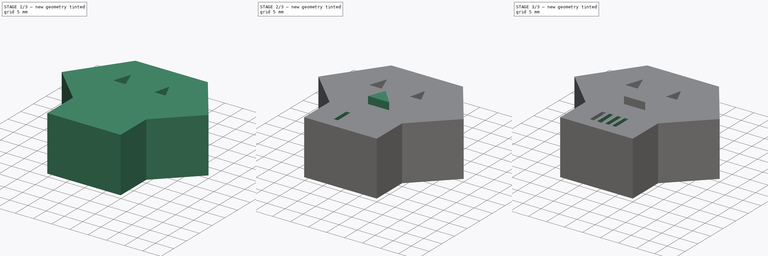
[diagram: build sequence overview — one tinted view per stage of 3, left to right]
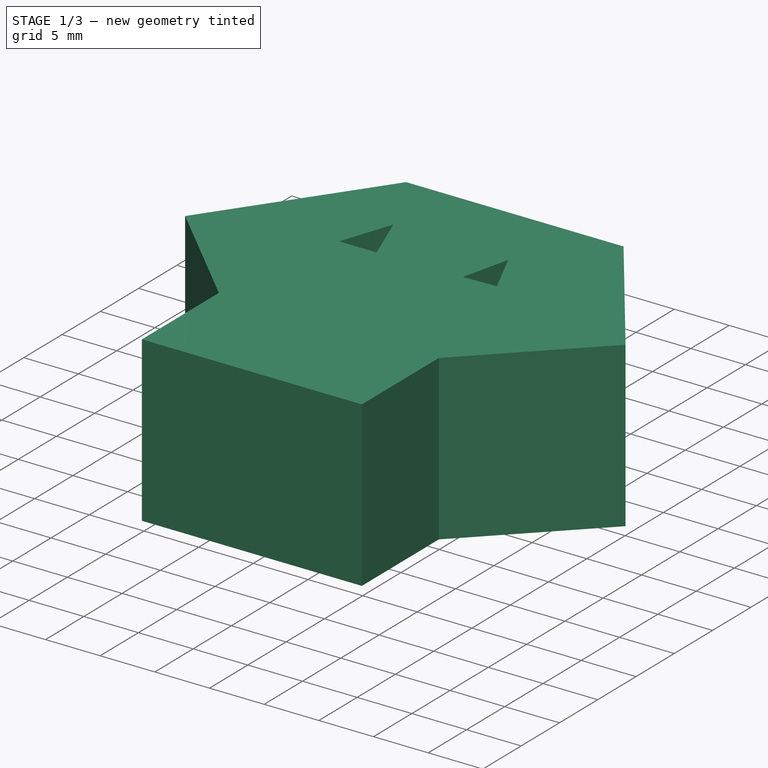
[diagram: stage 1 of 3 — iso view after this stage's code; geometry added in this stage tinted green]
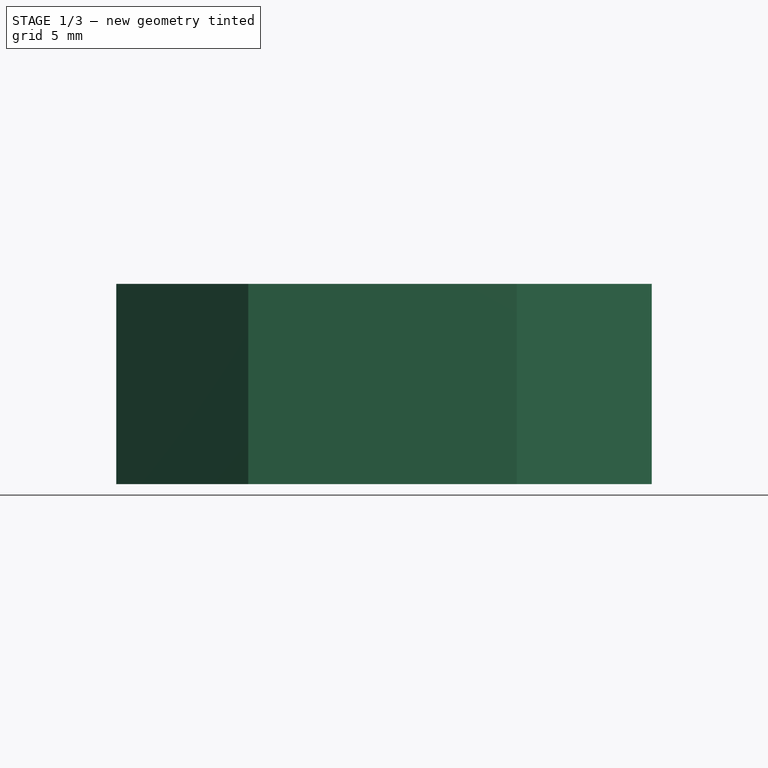
[diagram: stage 1 of 3 — front view after this stage's code; geometry added in this stage tinted green]
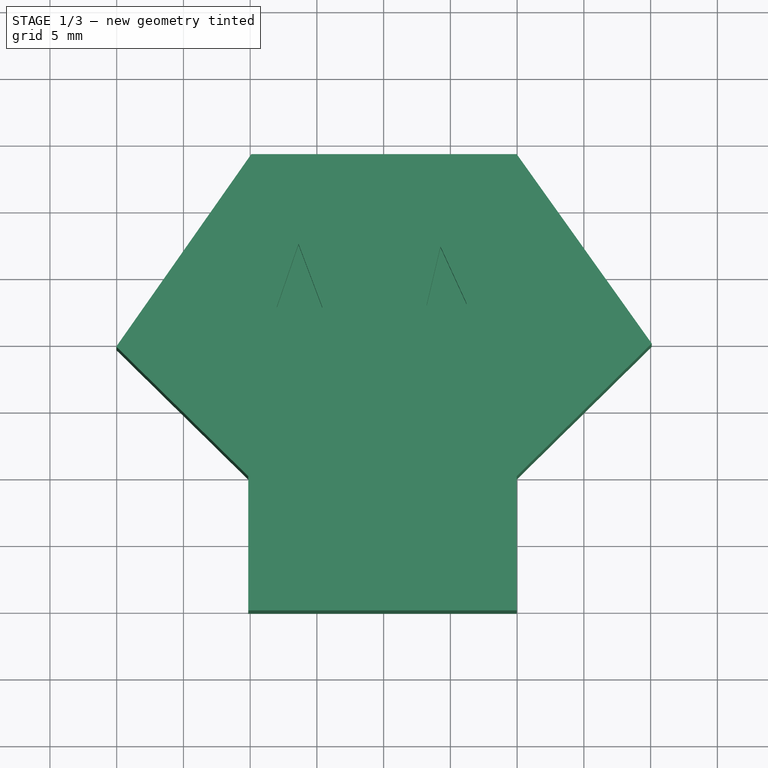
[diagram: stage 1 of 3 — top view after this stage's code; geometry added in this stage tinted green]
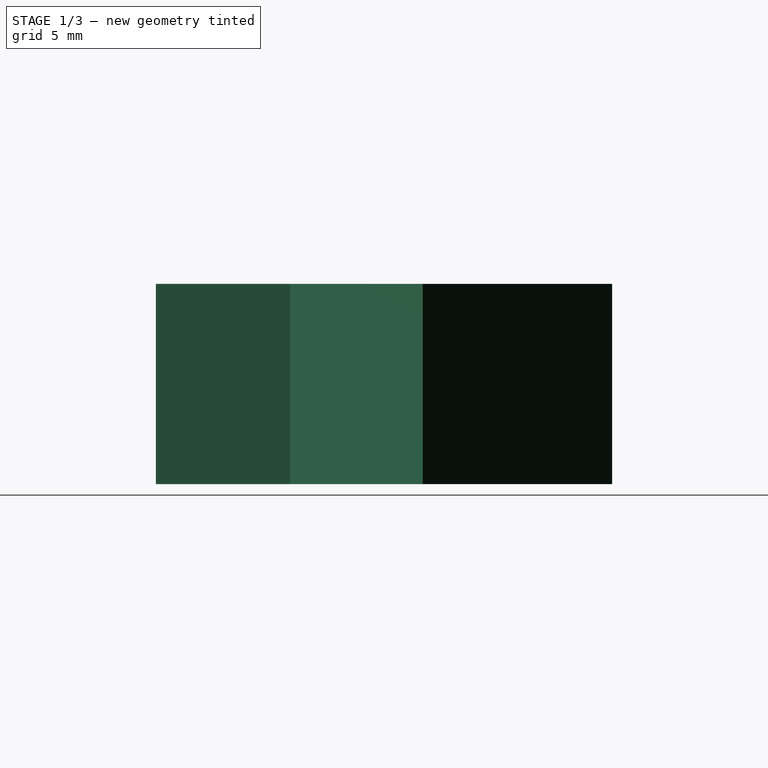
[diagram: stage 1 of 3 — right view after this stage's code; geometry added in this stage tinted green]
FCSTD DOCUMENT  (FreeCAD 0.21R33694 (Git))
Label: OJT1_T17R01_calavera
License: All rights reserved
LicenseURL: https://en.wikipedia.org/wiki/All_rights_reserved
objects: Sketcher::SketchObject×8, PartDesign::Pocket×6, PartDesign::Pad×2, PartDesign::Body×1
note: 25 computed .brp shape members not serialized (recipe doc carries the construction recipe); baked Part::Feature solids carry a one-line shape summary decoded from their .brp

FEATURE [Sketcher::SketchObject] Sketch
  FullyConstrained = false
  MapMode = 5
  Support = -> [XY_Plane]
  sketch-geometry (8):
    g0: LineSegment StartX=-10.1477 StartY=-10.0554 StartZ=0 EndX=9.96763 EndY=-10.0554 EndZ=0
    g1: LineSegment StartX=9.96763 StartY=-10.0554 StartZ=0 EndX=9.96763 EndY=0 EndZ=0
    g2: LineSegment StartX=9.96763 StartY=0 StartZ=0 EndX=20.0834 EndY=9.94371 EndZ=0
    g3: LineSegment StartX=20.0834 StartY=9.94371 StartZ=0 EndX=9.96763 EndY=24.1291 EndZ=0
    g4: LineSegment StartX=9.96763 StartY=24.1291 StartZ=0 EndX=-9.91517 EndY=24.1291 EndZ=0
    g5: LineSegment StartX=-9.91517 StartY=24.1291 StartZ=0 EndX=-20.031 EndY=9.71116 EndZ=0
    g6: LineSegment StartX=-20.031 StartY=9.71116 StartZ=0 EndX=-10.1477 EndY=0 EndZ=0
    g7: LineSegment StartX=-10.1477 StartY=0 StartZ=0 EndX=-10.1477 EndY=-10.0554 EndZ=0
  constraints (14):
    c: Horizontal(g0)
    c: Coincident(g0,g1)
    c: PointOnObject(g1,g-1)
    c: Vertical(g1)
    c: Coincident(g1,g2)
    c: Coincident(g2,g3)
    c: Coincident(g3,g4)
    c: Horizontal(g4)
    c: Coincident(g4,g5)
    c: Coincident(g5,g6)
    c: PointOnObject(g6,g-1)
    c: Coincident(g6,g7)
    c: Coincident(g7,g0)
    c: Vertical(g7)
FEATURE [PartDesign::Pad] Pad  label="cap_calavera"
  Direction = (0,0,1)
  Length = 15
  Length2 = 10
  Profile = -> Sketch
  ReferenceAxis = -> Sketch [N_Axis]
  Type = 0
FEATURE [Sketcher::SketchObject] Sketch001
  FullyConstrained = false
  MapMode = 5
  Placement = pos=(0,0,15) rot=(0,0,1;0rad)
  Support = -> [Pad]
  sketch-geometry (3):
    g0: LineSegment StartX=-8.01559 StartY=12.6535 StartZ=0 EndX=-6.37884 EndY=17.4079 EndZ=0
    g1: LineSegment StartX=-6.37884 StartY=17.4079 StartZ=0 EndX=-4.58621 EndY=12.6535 EndZ=0
    g2: LineSegment StartX=-4.58621 StartY=12.6535 StartZ=0 EndX=-8.01559 EndY=12.6535 EndZ=0
  constraints (4):
    c: Coincident(g0,g1)
    c: Coincident(g1,g2)
    c: Coincident(g2,g0)
    c: Horizontal(g2)
FEATURE [PartDesign::Pocket] Pocket
  BaseFeature = -> Pad
  Direction = (0,0,-1)
  Length = 4
  Length2 = 5
  Profile = -> Sketch001
  ReferenceAxis = -> Sketch001 [N_Axis]
  Type = 0
FEATURE [Sketcher::SketchObject] Sketch002
  FullyConstrained = false
  MapMode = 5
  Placement = pos=(0,0,15) rot=(0,0,1;0rad)
  Support = -> [Pocket]
  sketch-geometry (3):
    g0: LineSegment StartX=3.20978 StartY=12.7924 StartZ=0 EndX=4.25624 EndY=17.2108 EndZ=0
    g1: LineSegment StartX=4.25624 StartY=17.2108 StartZ=0 EndX=6.2329 EndY=12.9087 EndZ=0
    g2: LineSegment StartX=6.2329 StartY=12.9087 StartZ=0 EndX=3.20978 EndY=12.7924 EndZ=0
  constraints (3):
    c: Coincident(g0,g1)
    c: Coincident(g1,g2)
    c: Coincident(g2,g0)
FEATURE [PartDesign::Pocket] Pocket001
  BaseFeature = -> Pocket
  Direction = (0,0,-1)
  Length = 4
  Length2 = 5
  Profile = -> Sketch002
  ReferenceAxis = -> Sketch002 [N_Axis]
  Type = 0
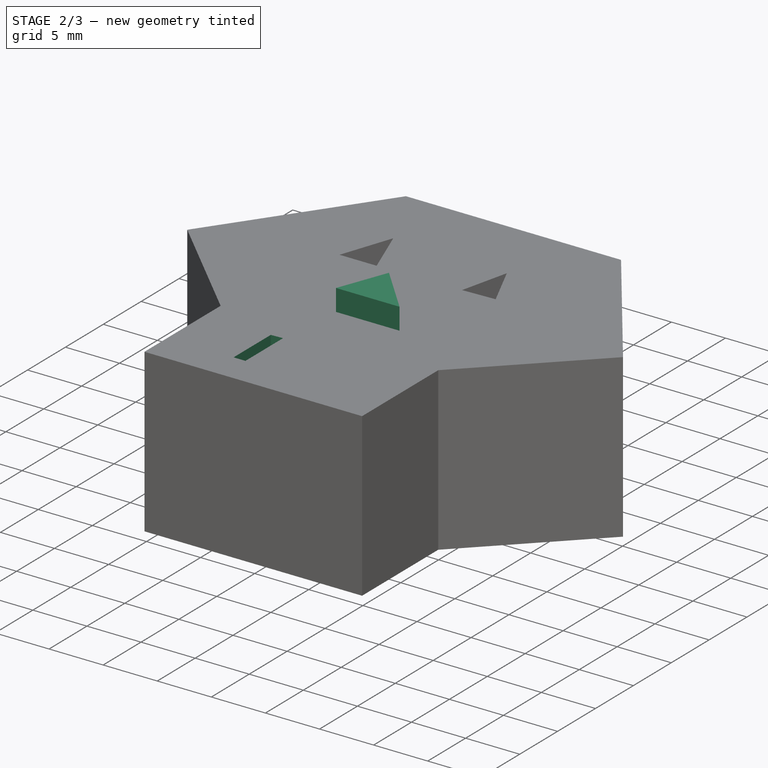
[diagram: stage 2 of 3 — iso view after this stage's code; geometry added in this stage tinted green]
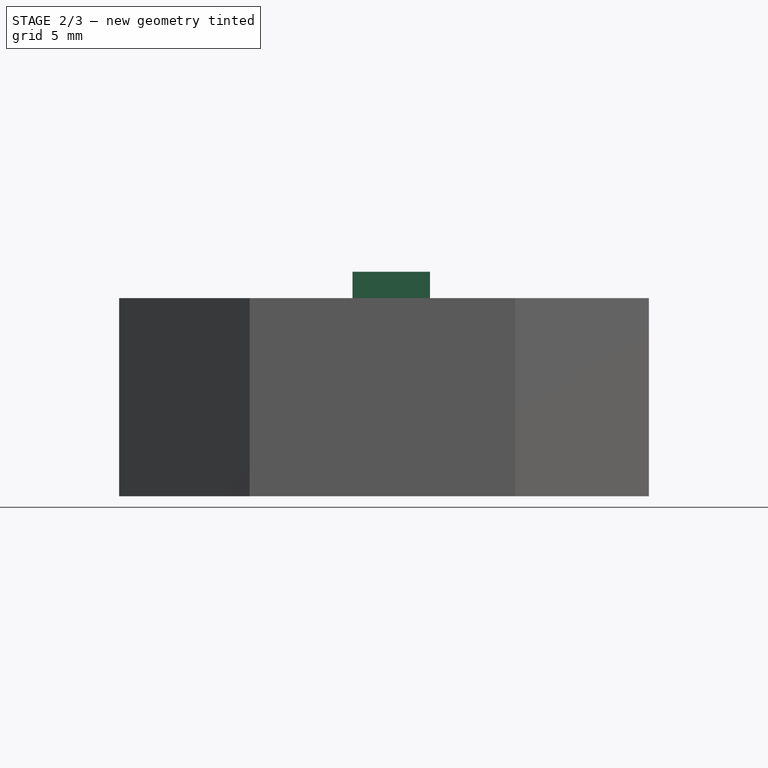
[diagram: stage 2 of 3 — front view after this stage's code; geometry added in this stage tinted green]
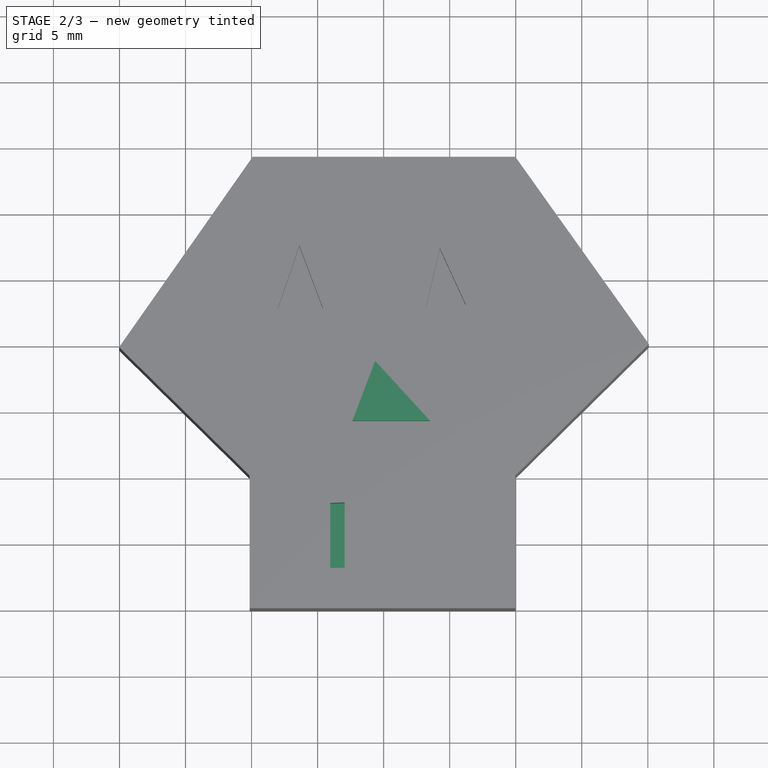
[diagram: stage 2 of 3 — top view after this stage's code; geometry added in this stage tinted green]
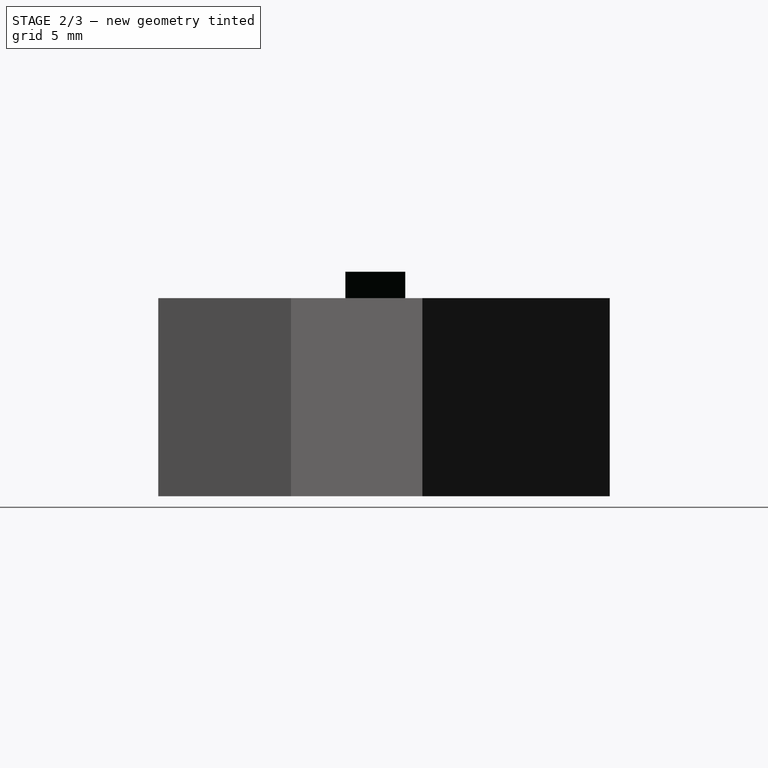
[diagram: stage 2 of 3 — right view after this stage's code; geometry added in this stage tinted green]
FEATURE [Sketcher::SketchObject] Sketch003
  FullyConstrained = false
  MapMode = 5
  Placement = pos=(0,0,15) rot=(0,0,1;0rad)
  Support = -> [Pocket001]
  sketch-geometry (3):
    g0: LineSegment StartX=-0.640232 StartY=8.64442 StartZ=0 EndX=-2.36316 EndY=4.11375 EndZ=0
    g1: LineSegment StartX=-2.36316 StartY=4.11375 StartZ=0 EndX=3.50757 EndY=4.11375 EndZ=0
    g2: LineSegment StartX=3.50757 StartY=4.11375 StartZ=0 EndX=-0.640232 EndY=8.64442 EndZ=0
  constraints (4):
    c: Coincident(g0,g1)
    c: Horizontal(g1)
    c: Coincident(g1,g2)
    c: Coincident(g2,g0)
FEATURE [PartDesign::Pad] Pad001
  BaseFeature = -> Pocket001
  Direction = (0,0,1)
  Length = 2
  Length2 = 10
  Profile = -> Sketch003
  ReferenceAxis = -> Sketch003 [N_Axis]
  Type = 0
FEATURE [Sketcher::SketchObject] Sketch004
  FullyConstrained = false
  MapMode = 5
  Placement = pos=(0,0,15) rot=(0,0,1;0rad)
  Support = -> [Pad001]
  sketch-geometry (4):
    g0: LineSegment StartX=-4.04793 StartY=-2.08913 StartZ=0 EndX=-4.04793 EndY=-7.00017 EndZ=0
    g1: LineSegment StartX=-4.04793 StartY=-7.00017 StartZ=0 EndX=-2.95079 EndY=-7.00017 EndZ=0
    g2: LineSegment StartX=-2.95079 StartY=-7.00017 StartZ=0 EndX=-2.95079 EndY=-2.03689 EndZ=0
    g3: LineSegment StartX=-2.95079 StartY=-2.03689 StartZ=0 EndX=-4.04793 EndY=-2.08913 EndZ=0
  constraints (7):
    c: Vertical(g0)
    c: Coincident(g0,g1)
    c: Horizontal(g1)
    c: Coincident(g1,g2)
    c: Vertical(g2)
    c: Coincident(g2,g3)
    c: Coincident(g3,g0)
FEATURE [PartDesign::Pocket] Pocket002
  BaseFeature = -> Pad001
  Direction = (0,0,-1)
  Length = 4
  Length2 = 5
  Profile = -> Sketch004
  ReferenceAxis = -> Sketch004 [N_Axis]
  Type = 0
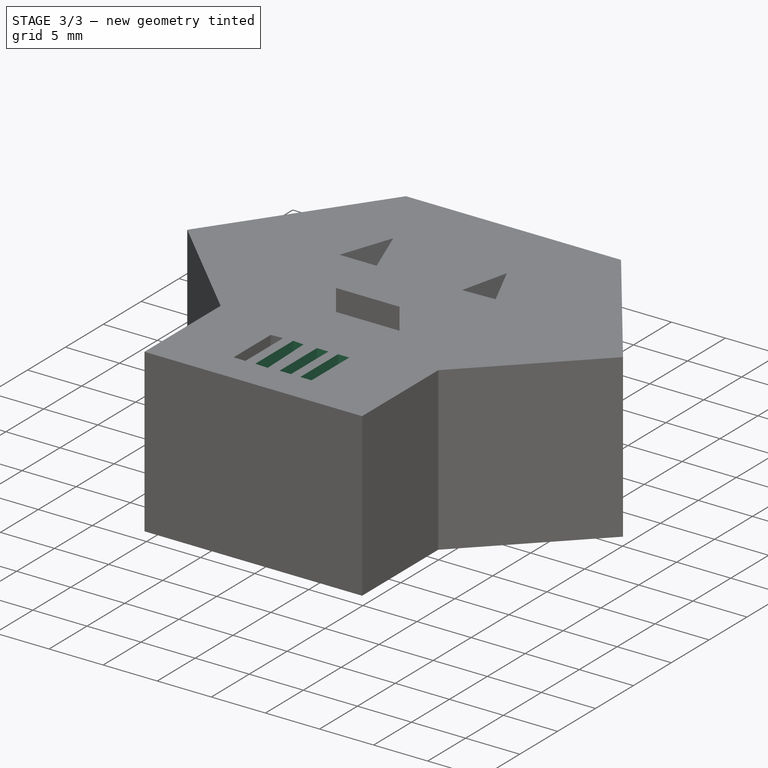
[diagram: stage 3 of 3 — iso view after this stage's code; geometry added in this stage tinted green]
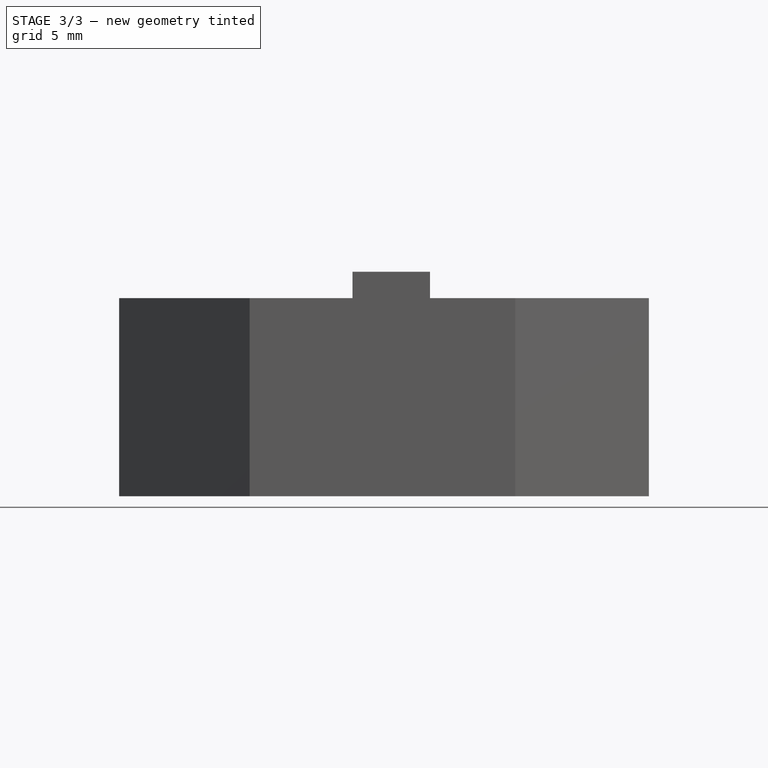
[diagram: stage 3 of 3 — front view after this stage's code; geometry added in this stage tinted green]
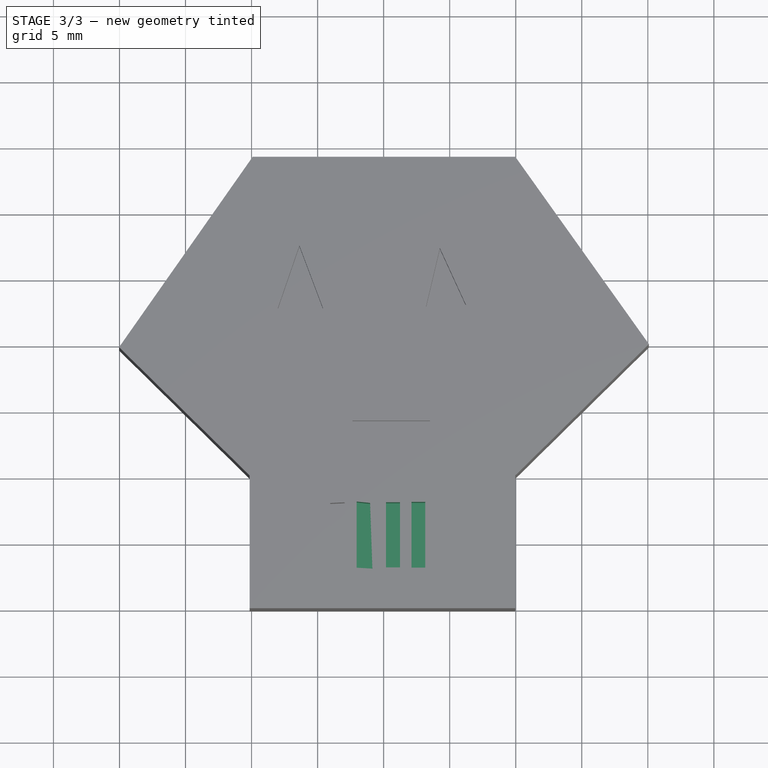
[diagram: stage 3 of 3 — top view after this stage's code; geometry added in this stage tinted green]
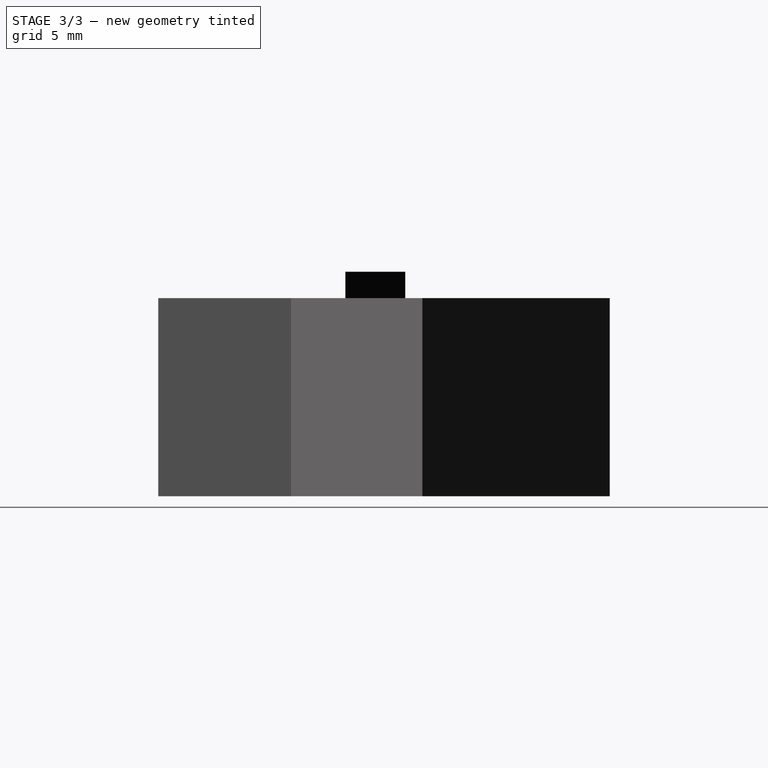
[diagram: stage 3 of 3 — right view after this stage's code; geometry added in this stage tinted green]
FEATURE [Sketcher::SketchObject] Sketch005
  FullyConstrained = false
  MapMode = 5
  Placement = pos=(0,0,15) rot=(0,0,1;0rad)
  Support = -> [Pocket002]
  sketch-geometry (4):
    g0: LineSegment StartX=-2.04637 StartY=-1.97799 StartZ=0 EndX=-2.04637 EndY=-6.98598 EndZ=0
    g1: LineSegment StartX=-2.04637 StartY=-6.98598 StartZ=0 EndX=-0.855654 EndY=-7.05603 EndZ=0
    g2: LineSegment StartX=-0.855654 StartY=-7.05603 StartZ=0 EndX=-1.03076 EndY=-2.08305 EndZ=0
    g3: LineSegment StartX=-1.03076 StartY=-2.08305 StartZ=0 EndX=-2.04637 EndY=-1.97799 EndZ=0
  constraints (5):
    c: Vertical(g0)
    c: Coincident(g0,g1)
    c: Coincident(g1,g2)
    c: Coincident(g2,g3)
    c: Coincident(g3,g0)
FEATURE [PartDesign::Pocket] Pocket003
  BaseFeature = -> Pocket002
  Direction = (0,0,-1)
  Length = 4
  Length2 = 5
  Profile = -> Sketch005
  ReferenceAxis = -> Sketch005 [N_Axis]
  Type = 0
FEATURE [Sketcher::SketchObject] Sketch006
  FullyConstrained = false
  MapMode = 5
  Placement = pos=(0,0,15) rot=(0,0,1;0rad)
  Support = -> [Pocket003]
  sketch-geometry (4):
    g0: LineSegment StartX=0.175175 StartY=-2.03327 StartZ=0 EndX=0.175175 EndY=-6.96498 EndZ=0
    g1: LineSegment StartX=0.175175 StartY=-6.96498 StartZ=0 EndX=1.23607 EndY=-6.96498 EndZ=0
    g2: LineSegment StartX=1.23607 StartY=-6.96498 StartZ=0 EndX=1.23607 EndY=-2.03327 EndZ=0
    g3: LineSegment StartX=1.23607 StartY=-2.03327 StartZ=0 EndX=0.175175 EndY=-2.03327 EndZ=0
  constraints (8):
    c: Vertical(g0)
    c: Coincident(g0,g1)
    c: Horizontal(g1)
    c: Coincident(g1,g2)
    c: Vertical(g2)
    c: Coincident(g2,g3)
    c: Coincident(g3,g0)
    c: Horizontal(g3)
FEATURE [PartDesign::Pocket] Pocket004
  BaseFeature = -> Pocket003
  Direction = (0,0,-1)
  Length = 4
  Length2 = 5
  Profile = -> Sketch006
  ReferenceAxis = -> Sketch006 [N_Axis]
  Type = 0
FEATURE [Sketcher::SketchObject] Sketch007
  FullyConstrained = false
  MapMode = 5
  Placement = pos=(0,0,15) rot=(0,0,1;0rad)
  Support = -> [Pocket004]
  sketch-geometry (4):
    g0: LineSegment StartX=2.10874 StartY=-2.00676 StartZ=0 EndX=2.10874 EndY=-6.98472 EndZ=0
    g1: LineSegment StartX=2.10874 StartY=-6.98472 StartZ=0 EndX=3.14697 EndY=-6.98472 EndZ=0
    g2: LineSegment StartX=3.14697 StartY=-6.98472 StartZ=0 EndX=3.14697 EndY=-2.00676 EndZ=0
    g3: LineSegment StartX=3.14697 StartY=-2.00676 StartZ=0 EndX=2.10874 EndY=-2.00676 EndZ=0
  constraints (8):
    c: Vertical(g0)
    c: Coincident(g0,g1)
    c: Horizontal(g1)
    c: Coincident(g1,g2)
    c: Vertical(g2)
    c: Coincident(g2,g3)
    c: Coincident(g3,g0)
    c: Horizontal(g3)
FEATURE [PartDesign::Pocket] Pocket005
  BaseFeature = -> Pocket004
  Direction = (0,0,-1)
  Length = 4
  Length2 = 5
  Profile = -> Sketch007
  ReferenceAxis = -> Sketch007 [N_Axis]
  Type = 0
FEATURE [PartDesign::Body] Body
  Group = -> [Sketch,Pad,Sketch001,Pocket,Sketch002,Pocket001,Sketch003,Pad001,Sketch004,Pocket002,Sketch005,Pocket003,Sketch006,Pocket004,Sketch007,Pocket005]
  Origin = -> Origin
  Tip = -> Pocket005
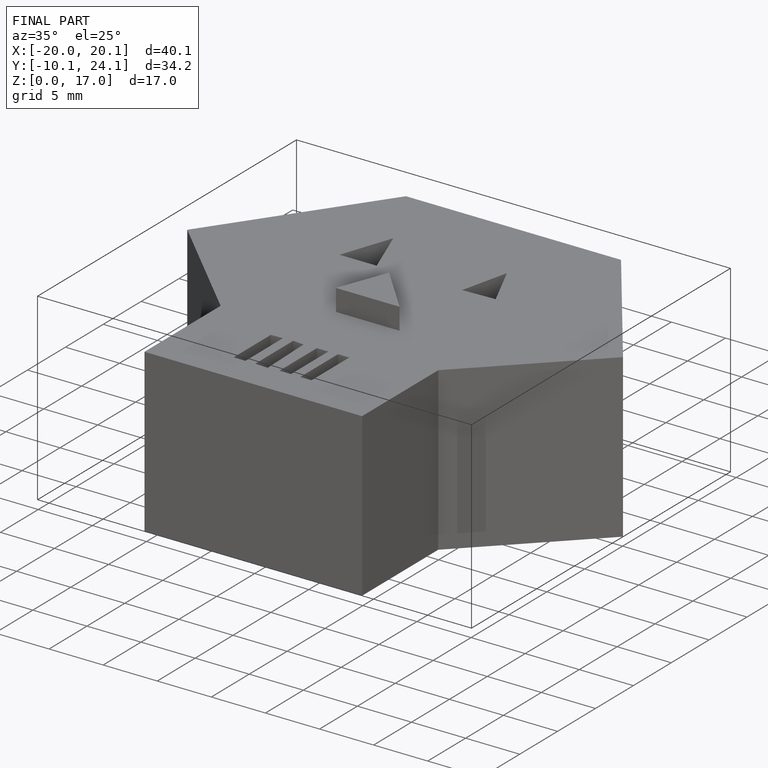
[diagram: finished part — iso view with bounding-box wireframe]
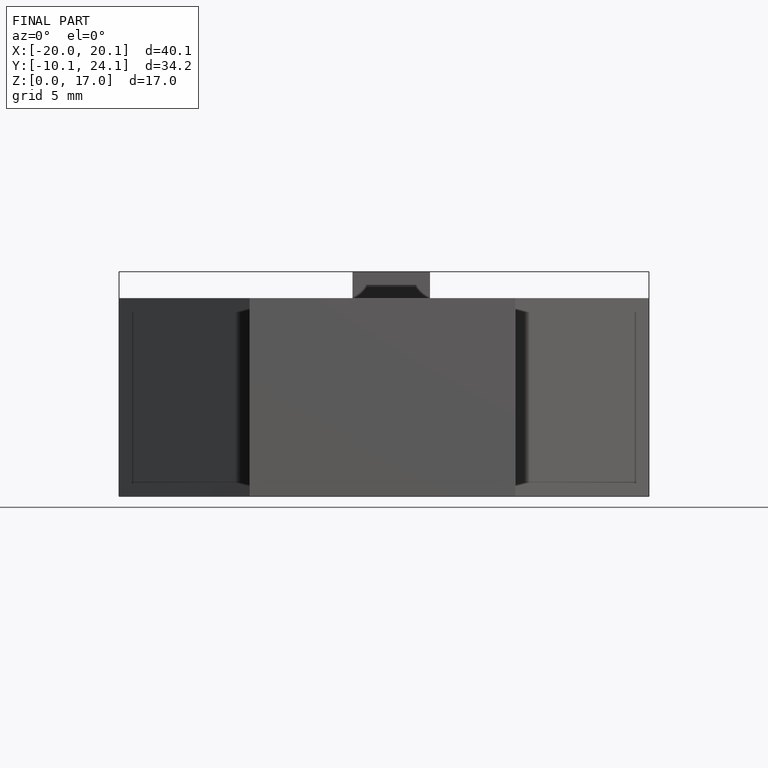
[diagram: finished part — front view with bounding-box wireframe]
